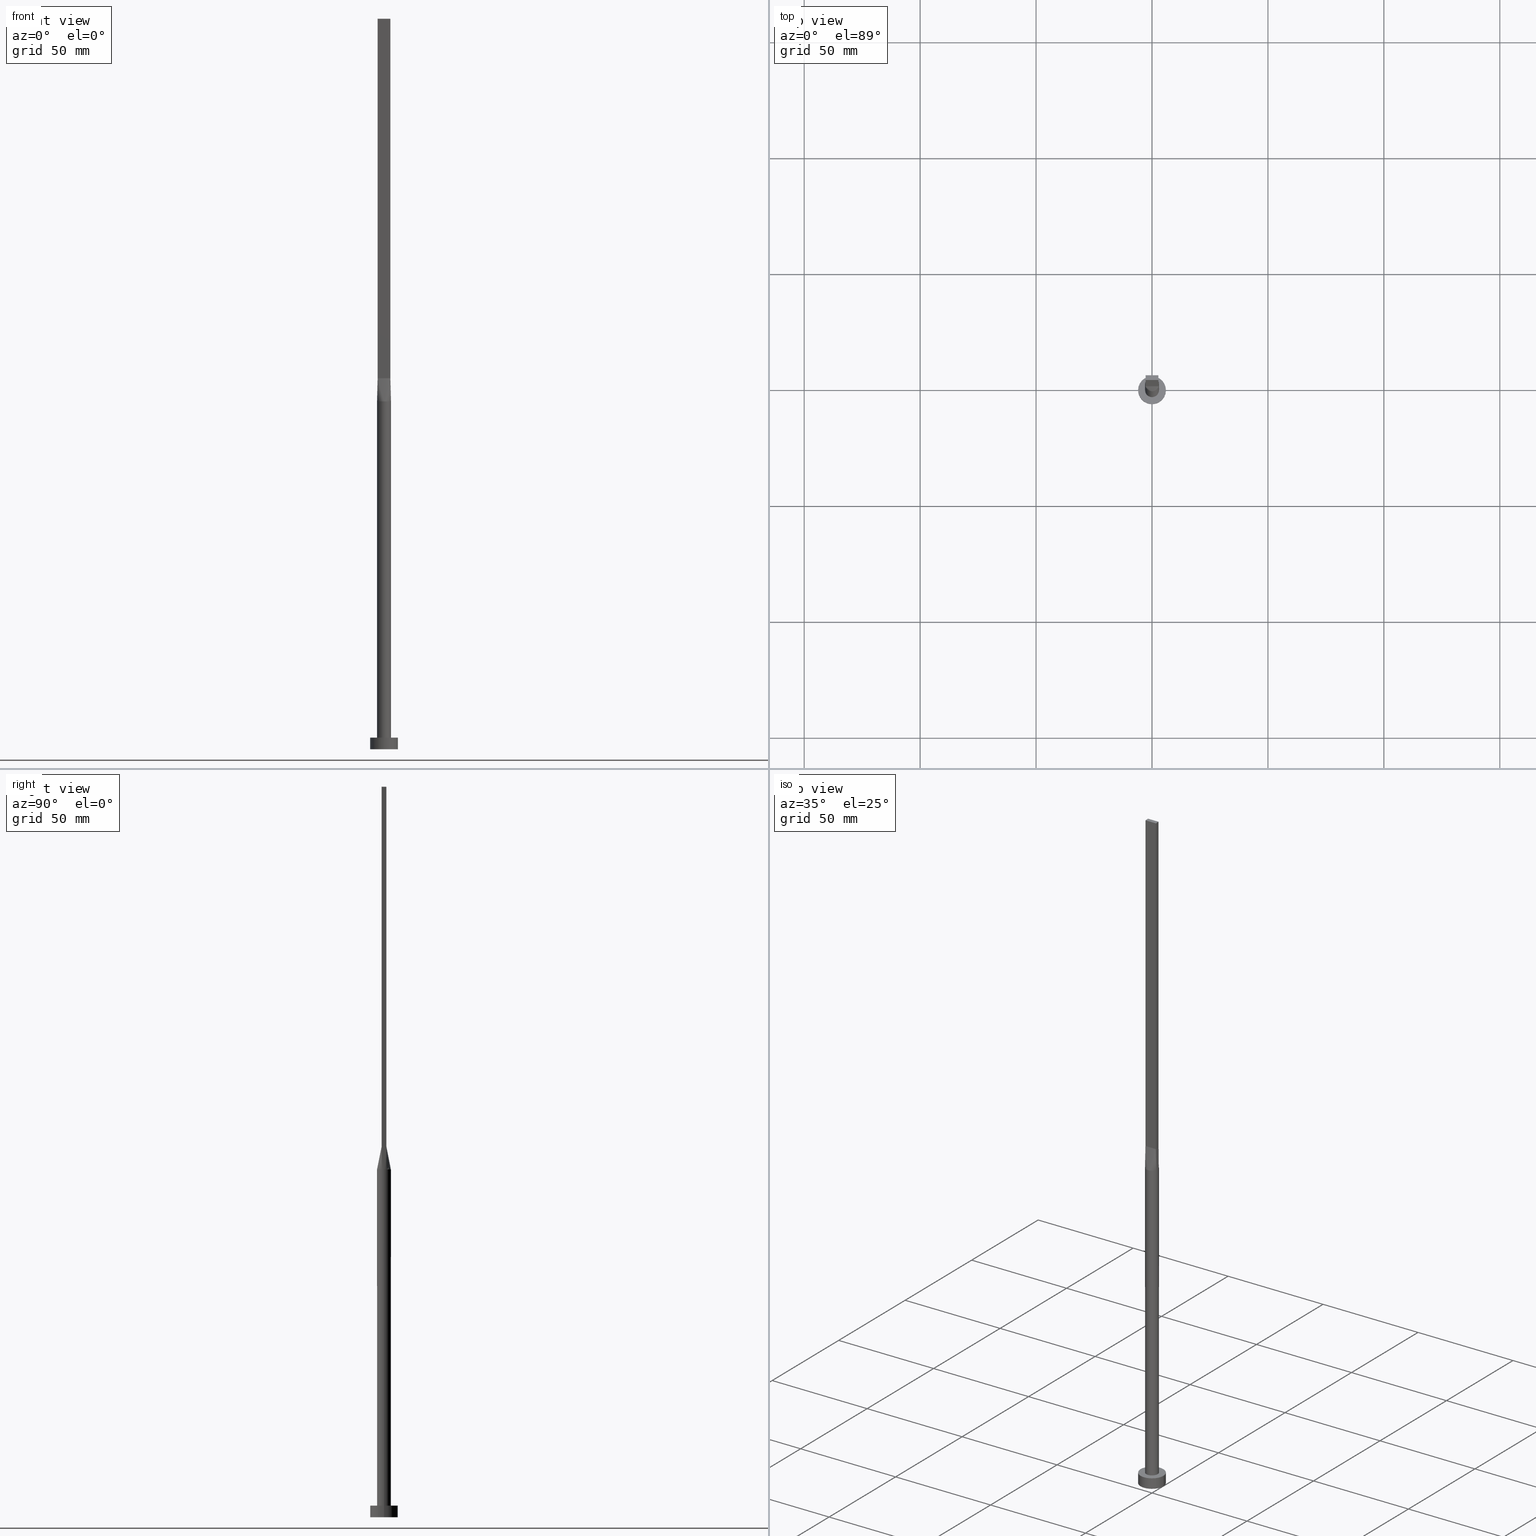
[diagram: canonical four-view strip — front | top / right | iso, engineering-drawing reading convention]
A machine part, canonical four-view strip (front | top / right | iso — engineering-drawing reading convention). The complete STEP part file that produces these views, byte-faithful:
ISO-10303-21;
HEADER;
FILE_DESCRIPTION (( 'STEP AP203' ),
    '1' );
FILE_NAME ('6c79.STEP',
    '2023-02-13T10:48:00',
    ( '' ),
    ( '' ),
    'SwSTEP 2.0',
    'SolidWorks 2019',
    '' );
FILE_SCHEMA (( 'CONFIG_CONTROL_DESIGN' ));
ENDSEC;

DATA;
#1 = DIRECTION ( 'NONE',  ( -1.000000000000000000, 0.000000000000000000, 0.000000000000000000 ) ) ;
#2 = APPLICATION_PROTOCOL_DEFINITION ( 'international standard', 'config_control_design', 1994, #474 ) ;
#3 = CARTESIAN_POINT ( 'NONE',  ( 2.739088299662391979, -1.246032108968142982, 150.0000000000000000 ) ) ;
#4 = B_SPLINE_SURFACE_WITH_KNOTS ( 'NONE', 3, 1, ( 
 ( #578, #421 ),
 ( #177, #137 ),
 ( #363, #6 ),
 ( #98, #419 ),
 ( #307, #182 ),
 ( #267, #449 ) ),
 .UNSPECIFIED., .F., .F., .F.,
 ( 4, 2, 4 ),
 ( 2, 2 ),
 ( 0.000000000000000000, 0.5000000000000000000, 1.000000000000000000 ),
 ( 0.000000000000000000, 1.000000000000000000 ),
 .UNSPECIFIED. ) ;
#5 = ORIENTED_EDGE ( 'NONE', *, *, #444, .F. ) ;
#6 = CARTESIAN_POINT ( 'NONE',  ( -2.749999999999999556, 0.3333333333333334814, 159.9999999999999716 ) ) ;
#7 = ORIENTED_EDGE ( 'NONE', *, *, #329, .T. ) ;
#8 = VECTOR ( 'NONE', #148, 1000.000000000000000 ) ;
#9 = DIRECTION ( 'NONE',  ( -0.000000000000000000, -0.000000000000000000, -1.000000000000000000 ) ) ;
#10 = EDGE_CURVE ( 'NONE', #427, #25, #527, .T. ) ;
#11 = AXIS2_PLACEMENT_3D ( 'NONE', #69, #274, #497 ) ;
#12 = AXIS2_PLACEMENT_3D ( 'NONE', #283, #240, #424 ) ;
#13 = DIRECTION ( 'NONE',  ( 0.000000000000000000, 0.000000000000000000, 1.000000000000000000 ) ) ;
#14 = DIRECTION ( 'NONE',  ( 0.000000000000000000, 0.000000000000000000, 1.000000000000000000 ) ) ;
#15 = LINE ( 'NONE', #581, #8 ) ;
#16 = EDGE_LOOP ( 'NONE', ( #97, #411, #5, #415 ) ) ;
#17 = DIRECTION ( 'NONE',  ( -0.000000000000000000, -0.000000000000000000, -1.000000000000000000 ) ) ;
#18 = LINE ( 'NONE', #75, #393 ) ;
#19 = PERSON_AND_ORGANIZATION ( #167, #465 ) ;
#20 = EDGE_CURVE ( 'NONE', #365, #25, #297, .T. ) ;
#21 = EDGE_LOOP ( 'NONE', ( #530, #279 ) ) ;
#22 = EDGE_CURVE ( 'NONE', #514, #558, #532, .T. ) ;
#23 = AXIS2_PLACEMENT_3D ( 'NONE', #68, #13, #426 ) ;
#24 = CYLINDRICAL_SURFACE ( 'NONE', #235, 3.000000000000000444 ) ;
#25 = VERTEX_POINT ( 'NONE', #481 ) ;
#26 = DIRECTION ( 'NONE',  ( 0.000000000000000000, 0.000000000000000000, 1.000000000000000000 ) ) ;
#27 = DATE_AND_TIME ( #76, #169 ) ;
#28 = ORIENTED_EDGE ( 'NONE', *, *, #20, .T. ) ;
#29 = B_SPLINE_SURFACE_WITH_KNOTS ( 'NONE', 3, 1, ( 
 ( #402, #486 ),
 ( #79, #569 ),
 ( #164, #263 ),
 ( #124, #170 ),
 ( #345, #303 ),
 ( #446, #43 ),
 ( #218, #576 ),
 ( #475, #392 ),
 ( #436, #34 ),
 ( #207, #396 ),
 ( #451, #276 ),
 ( #89, #135 ),
 ( #272, #457 ),
 ( #233, #410 ),
 ( #358, #311 ),
 ( #132, #414 ),
 ( #3, #494 ),
 ( #180, #314 ) ),
 .UNSPECIFIED., .F., .F., .F.,
 ( 4, 2, 2, 2, 2, 2, 2, 2, 4 ),
 ( 2, 2 ),
 ( 0.000000000000000000, 0.1250000000000000000, 0.2500000000000000000, 0.3750000000000000000, 0.5000000000000000000, 0.6250000000000000000, 0.7500000000000000000, 0.8750000000000000000, 1.000000000000000000 ),
 ( 0.000000000000000000, 1.000000000000000000 ),
 .UNSPECIFIED. ) ;
#30 = APPROVAL_STATUS ( 'not_yet_approved' ) ;
#31 = CARTESIAN_POINT ( 'NONE',  ( 0.000000000000000000, 0.000000000000000000, 5.000000000000000000 ) ) ;
#32 = CIRCLE ( 'NONE', #123, 6.000000000000000888 ) ;
#33 = CALENDAR_DATE ( 2023, 13, 2 ) ;
#34 = CARTESIAN_POINT ( 'NONE',  ( -0.2291666666666671015, -0.9999999999999993339, 160.0000000000000000 ) ) ;
#35 = ORIENTED_EDGE ( 'NONE', *, *, #444, .T. ) ;
#36 = CARTESIAN_POINT ( 'NONE',  ( -0.6998073349918608743, 2.936959335800557014, 150.0000000000000000 ) ) ;
#37 = PERSON_AND_ORGANIZATION ( #167, #465 ) ;
#38 = DIRECTION ( 'NONE',  ( -0.000000000000000000, -0.000000000000000000, -1.000000000000000000 ) ) ;
#39 = CARTESIAN_POINT ( 'NONE',  ( -1.627925520694712747, 2.539128397820341831, 150.0000000000000284 ) ) ;
#40 = VERTEX_POINT ( 'NONE', #121 ) ;
#41 = EDGE_CURVE ( 'NONE', #574, #558, #526, .T. ) ;
#42 = FACE_OUTER_BOUND ( 'NONE', #145, .T. ) ;
#43 = CARTESIAN_POINT ( 'NONE',  ( -1.145833333333333703, -0.9999999999999993339, 159.9999999999999716 ) ) ;
#44 = CIRCLE ( 'NONE', #367, 3.000000000000000444 ) ;
#45 = AXIS2_PLACEMENT_3D ( 'NONE', #575, #171, #352 ) ;
#46 =( GEOMETRIC_REPRESENTATION_CONTEXT ( 3 ) GLOBAL_UNCERTAINTY_ASSIGNED_CONTEXT ( ( #269 ) ) GLOBAL_UNIT_ASSIGNED_CONTEXT ( ( #133, #317, #469 ) ) REPRESENTATION_CONTEXT ( 'NONE', 'WORKASPACE' ) );
#47 = EDGE_CURVE ( 'NONE', #574, #365, #44, .T. ) ;
#48 = CARTESIAN_POINT ( 'NONE',  ( -2.314486317179579977, 1.928337902455808051, 150.0000000000000284 ) ) ;
#49 = CARTESIAN_POINT ( 'NONE',  ( 2.750000000000000000, -0.9999999999999997780, 315.0000000000000000 ) ) ;
#50 = CARTESIAN_POINT ( 'NONE',  ( -2.115507543051069916, 2.149870311632977593, 150.0000000000000568 ) ) ;
#51 = CARTESIAN_POINT ( 'NONE',  ( 0.000000000000000000, 0.000000000000000000, 150.0000000000000000 ) ) ;
#52 = MANIFOLD_SOLID_BREP ( 'P�idat vysunut�m5', #309 ) ;
#53 = CARTESIAN_POINT ( 'NONE',  ( -2.739088299662392423, 1.246032108968142316, 150.0000000000000284 ) ) ;
#54 = DIRECTION ( 'NONE',  ( 1.000000000000000000, 0.000000000000000000, 0.000000000000000000 ) ) ;
#55 = EDGE_LOOP ( 'NONE', ( #129, #113, #430, #321, #359, #271 ) ) ;
#56 = CARTESIAN_POINT ( 'NONE',  ( 2.625980160873452540, 1.476334031700886618, 150.0000000000000000 ) ) ;
#57 = CARTESIAN_POINT ( 'NONE',  ( 2.819430526142641558, -1.025247683279450817, 150.0000000000000000 ) ) ;
#58 = ADVANCED_FACE ( 'NONE', ( #339 ), #353, .T. ) ;
#59 = DIRECTION ( 'NONE',  ( -0.000000000000000000, -0.000000000000000000, -1.000000000000000000 ) ) ;
#60 = ADVANCED_FACE ( 'NONE', ( #572 ), #29, .T. ) ;
#61 = LINE ( 'NONE', #384, #74 ) ;
#62 = EDGE_LOOP ( 'NONE', ( #66, #439, #155, #193 ) ) ;
#63 = VECTOR ( 'NONE', #87, 1000.000000000000227 ) ;
#64 = AXIS2_PLACEMENT_3D ( 'NONE', #241, #289, #428 ) ;
#65 = FACE_BOUND ( 'NONE', #21, .T. ) ;
#66 = ORIENTED_EDGE ( 'NONE', *, *, #420, .T. ) ;
#67 = EDGE_CURVE ( 'NONE', #544, #119, #183, .T. ) ;
#68 = CARTESIAN_POINT ( 'NONE',  ( 0.000000000000000000, 0.000000000000000000, 5.000000000000000000 ) ) ;
#69 = CARTESIAN_POINT ( 'NONE',  ( 0.000000000000000000, 0.000000000000000000, 150.0000000000000000 ) ) ;
#70 = ORIENTED_EDGE ( 'NONE', *, *, #67, .F. ) ;
#71 = LINE ( 'NONE', #290, #456 ) ;
#72 = CARTESIAN_POINT ( 'NONE',  ( 2.739088299662392867, 1.246032108968142538, 150.0000000000000568 ) ) ;
#73 = ORIENTED_EDGE ( 'NONE', *, *, #41, .T. ) ;
#74 = VECTOR ( 'NONE', #105, 1000.000000000000000 ) ;
#75 = CARTESIAN_POINT ( 'NONE',  ( 2.749999999999999556, 1.000000000000000000, 315.0000000000000000 ) ) ;
#76 = CALENDAR_DATE ( 2023, 13, 2 ) ;
#77 = ORIENTED_EDGE ( 'NONE', *, *, #417, .T. ) ;
#78 = EDGE_CURVE ( 'NONE', #119, #312, #364, .T. ) ;
#79 = CARTESIAN_POINT ( 'NONE',  ( -2.739088299662391979, -1.246032108968140983, 150.0000000000000568 ) ) ;
#80 = CARTESIAN_POINT ( 'NONE',  ( 1.627925520694712080, 2.539128397820340943, 150.0000000000000000 ) ) ;
#81 = DIRECTION ( 'NONE',  ( 1.000000000000000000, 0.000000000000000000, 0.000000000000000000 ) ) ;
#82 = PLANE ( 'NONE',  #369 ) ;
#83 = PERSON_AND_ORGANIZATION ( #167, #465 ) ;
#84 = CARTESIAN_POINT ( 'NONE',  ( -2.749999999999999556, 1.000000000000000000, 315.0000000000000000 ) ) ;
#85 = EDGE_CURVE ( 'NONE', #324, #335, #413, .T. ) ;
#86 = DIRECTION ( 'NONE',  ( -1.000000000000000000, 7.885106708985489034E-17, 0.000000000000000000 ) ) ;
#87 = DIRECTION ( 'NONE',  ( 0.006937837988376402941, -0.002522850177591346235, 0.9999727504442450510 ) ) ;
#88 = CARTESIAN_POINT ( 'NONE',  ( -6.000000000000000888, 0.000000000000000000, 5.000000000000000000 ) ) ;
#89 = CARTESIAN_POINT ( 'NONE',  ( 1.338960936578149630, -2.706038443291638007, 150.0000000000000284 ) ) ;
#90 = CC_DESIGN_APPROVAL ( #340, ( #501 ) ) ;
#91 = CARTESIAN_POINT ( 'NONE',  ( -2.520833333333332593, 1.000000000000000000, 159.9999999999999716 ) ) ;
#92 = PRODUCT_DEFINITION ( 'NEZN�M�', '', #501, #220 ) ;
#93 = DIRECTION ( 'NONE',  ( 0.000000000000000000, 0.000000000000000000, 1.000000000000000000 ) ) ;
#94 = CARTESIAN_POINT ( 'NONE',  ( 1.338960936578149630, 2.706038443291637563, 150.0000000000000000 ) ) ;
#95 = ADVANCED_FACE ( 'NONE', ( #496 ), #408, .F. ) ;
#96 = CARTESIAN_POINT ( 'NONE',  ( 2.784690135232656072, -1.012614594630056208, 155.0000000000000000 ) ) ;
#97 = ORIENTED_EDGE ( 'NONE', *, *, #565, .T. ) ;
#98 = CARTESIAN_POINT ( 'NONE',  ( -3.000000000000000444, -0.3523499553598117839, 149.9999999999999716 ) ) ;
#99 = AXIS2_PLACEMENT_3D ( 'NONE', #173, #534, #509 ) ;
#100 = DIRECTION ( 'NONE',  ( 1.000000000000000000, 0.000000000000000000, 0.000000000000000000 ) ) ;
#101 = DIRECTION ( 'NONE',  ( -0.000000000000000000, -0.000000000000000000, -1.000000000000000000 ) ) ;
#102 = FACE_OUTER_BOUND ( 'NONE', #255, .T. ) ;
#103 = ORIENTED_EDGE ( 'NONE', *, *, #338, .T. ) ;
#104 = CIRCLE ( 'NONE', #45, 6.000000000000000888 ) ;
#105 = DIRECTION ( 'NONE',  ( -1.000000000000000000, -0.000000000000000000, -0.000000000000000000 ) ) ;
#106 = COORDINATED_UNIVERSAL_TIME_OFFSET ( 1, 0, .AHEAD. ) ;
#107 = CARTESIAN_POINT ( 'NONE',  ( -2.750000000000000000, -0.9999999999999993339, 315.0000000000000000 ) ) ;
#108 = CC_DESIGN_DATE_AND_TIME_ASSIGNMENT ( #434, #388, ( #217 ) ) ;
#109 = PERSON_AND_ORGANIZATION_ROLE ( 'design_owner' ) ;
#110 = ORIENTED_EDGE ( 'NONE', *, *, #322, .T. ) ;
#111 = DIRECTION ( 'NONE',  ( -0.000000000000000000, -0.000000000000000000, -1.000000000000000000 ) ) ;
#112 = ADVANCED_FACE ( 'NONE', ( #543 ), #278, .T. ) ;
#113 = ORIENTED_EDGE ( 'NONE', *, *, #571, .T. ) ;
#114 = VECTOR ( 'NONE', #101, 1000.000000000000000 ) ;
#115 = APPROVAL_PERSON_ORGANIZATION ( #37, #340, #120 ) ;
#116 = SECURITY_CLASSIFICATION_LEVEL ( 'unclassified' ) ;
#117 = EDGE_LOOP ( 'NONE', ( #7, #287 ) ) ;
#118 = PERSON_AND_ORGANIZATION_ROLE ( 'creator' ) ;
#119 = VERTEX_POINT ( 'NONE', #57 ) ;
#120 = APPROVAL_ROLE ( '' ) ;
#121 = CARTESIAN_POINT ( 'NONE',  ( 2.749999999999999556, 1.000000000000000000, 160.0000000000000000 ) ) ;
#122 = CARTESIAN_POINT ( 'NONE',  ( -2.749999999999999556, 1.000000000000000000, 315.0000000000000000 ) ) ;
#123 = AXIS2_PLACEMENT_3D ( 'NONE', #331, #557, #467 ) ;
#124 = CARTESIAN_POINT ( 'NONE',  ( -2.314486317179578645, -1.928337902455806496, 150.0000000000000000 ) ) ;
#125 = LINE ( 'NONE', #122, #573 ) ;
#126 = ORIENTED_EDGE ( 'NONE', *, *, #78, .F. ) ;
#127 = CARTESIAN_POINT ( 'NONE',  ( -2.749999999999999556, 1.000000000000000000, 315.0000000000000000 ) ) ;
#128 = APPLICATION_CONTEXT ( 'configuration controlled 3d designs of mechanical parts and assemblies' ) ;
#129 = ORIENTED_EDGE ( 'NONE', *, *, #85, .F. ) ;
#130 = EDGE_CURVE ( 'NONE', #25, #427, #448, .T. ) ;
#131 = CARTESIAN_POINT ( 'NONE',  ( 2.936168591633195657, 0.7040613060484338659, 150.0000000000000000 ) ) ;
#132 = CARTESIAN_POINT ( 'NONE',  ( 2.625980160873452984, -1.476334031700886618, 149.9999999999999716 ) ) ;
#133 =( LENGTH_UNIT ( ) NAMED_UNIT ( * ) SI_UNIT ( .MILLI., .METRE. ) );
#134 = PRODUCT_RELATED_PRODUCT_CATEGORY ( 'detail', '', ( #288 ) ) ;
#135 = CARTESIAN_POINT ( 'NONE',  ( 0.9166666666666661856, -0.9999999999999995559, 159.9999999999999716 ) ) ;
#136 = DIRECTION ( 'NONE',  ( -0.006937837988376359573, -0.002522850177591324551, -0.9999727504442450510 ) ) ;
#137 = CARTESIAN_POINT ( 'NONE',  ( -2.749999999999999556, 0.6666666666666667407, 159.9999999999999716 ) ) ;
#138 = ORIENTED_EDGE ( 'NONE', *, *, #416, .T. ) ;
#139 = APPLICATION_PROTOCOL_DEFINITION ( 'international standard', 'config_control_design', 1994, #128 ) ;
#140 = DIRECTION ( 'NONE',  ( 0.000000000000000000, 0.000000000000000000, 1.000000000000000000 ) ) ;
#141 = VECTOR ( 'NONE', #488, 1000.000000000000000 ) ;
#142 = VECTOR ( 'NONE', #325, 1000.000000000000000 ) ;
#143 = LINE ( 'NONE', #147, #142 ) ;
#144 = CARTESIAN_POINT ( 'NONE',  ( 0.000000000000000000, 0.000000000000000000, 5.000000000000000000 ) ) ;
#145 = EDGE_LOOP ( 'NONE', ( #292, #435, #328, #188 ) ) ;
#146 = LINE ( 'NONE', #225, #195 ) ;
#147 = CARTESIAN_POINT ( 'NONE',  ( -2.750000000000000000, -0.9999999999999993339, 160.0000000000000000 ) ) ;
#148 = DIRECTION ( 'NONE',  ( -0.000000000000000000, -0.000000000000000000, -1.000000000000000000 ) ) ;
#149 = VERTEX_POINT ( 'NONE', #227 ) ;
#150 = VECTOR ( 'NONE', #221, 1000.000000000000000 ) ;
#151 = CARTESIAN_POINT ( 'NONE',  ( -6.000000000000000888, 0.000000000000000000, 5.000000000000000000 ) ) ;
#152 = CARTESIAN_POINT ( 'NONE',  ( -2.819429393986302657, 1.025247261300842760, 150.0000000000000000 ) ) ;
#153 = ORIENTED_EDGE ( 'NONE', *, *, #85, .T. ) ;
#154 = CARTESIAN_POINT ( 'NONE',  ( 2.750000000000000000, -0.9999999999999997780, 160.0000000000000000 ) ) ;
#155 = ORIENTED_EDGE ( 'NONE', *, *, #322, .F. ) ;
#156 = ADVANCED_FACE ( 'NONE', ( #232 ), #223, .T. ) ;
#157 = CALENDAR_DATE ( 2023, 13, 2 ) ;
#158 = VERTEX_POINT ( 'NONE', #580 ) ;
#159 = AXIS2_PLACEMENT_3D ( 'NONE', #270, #537, #453 ) ;
#160 = LOCAL_TIME ( 11, 47, 59.00000000000000000, #296 ) ;
#161 = ORIENTED_EDGE ( 'NONE', *, *, #565, .F. ) ;
#162 = EDGE_LOOP ( 'NONE', ( #181, #517, #299, #138 ) ) ;
#163 = CARTESIAN_POINT ( 'NONE',  ( 3.000000000000000444, 0.3523499553598119505, 149.9999999999999716 ) ) ;
#164 = CARTESIAN_POINT ( 'NONE',  ( -2.625980160873452540, -1.476334031700885507, 150.0000000000000000 ) ) ;
#165 = ADVANCED_FACE ( 'NONE', ( #175 ), #4, .T. ) ;
#166 = CARTESIAN_POINT ( 'NONE',  ( 1.604166666666667185, 1.000000000000000000, 159.9999999999999716 ) ) ;
#167 = PERSON ( 'NEUR�EN�', 'NEUR�EN�', 'NEUR�EN�', ('NEUR�EN�'), ('NEUR�EN�'), ('NEUR�EN�') ) ;
#168 = VECTOR ( 'NONE', #422, 1000.000000000000000 ) ;
#169 = LOCAL_TIME ( 11, 47, 59.00000000000000000, #261 ) ;
#170 = CARTESIAN_POINT ( 'NONE',  ( -1.833333333333333481, -0.9999999999999993339, 159.9999999999999716 ) ) ;
#171 = DIRECTION ( 'NONE',  ( 0.000000000000000000, 0.000000000000000000, 1.000000000000000000 ) ) ;
#172 = DIRECTION ( 'NONE',  ( 0.000000000000000000, 0.000000000000000000, 1.000000000000000000 ) ) ;
#173 = CARTESIAN_POINT ( 'NONE',  ( 0.000000000000000000, 0.000000000000000000, 150.0000000000000000 ) ) ;
#174 = LINE ( 'NONE', #459, #519 ) ;
#175 = FACE_OUTER_BOUND ( 'NONE', #214, .T. ) ;
#176 = CARTESIAN_POINT ( 'NONE',  ( -1.627925520694712747, 2.539128397820341831, 150.0000000000000284 ) ) ;
#177 = CARTESIAN_POINT ( 'NONE',  ( -2.936168591633194769, 0.7040613060484341990, 150.0000000000000568 ) ) ;
#178 = EDGE_CURVE ( 'NONE', #158, #312, #539, .T. ) ;
#179 = CARTESIAN_POINT ( 'NONE',  ( 2.314486317179579977, 1.928337902455807384, 150.0000000000000568 ) ) ;
#180 = CARTESIAN_POINT ( 'NONE',  ( 2.819380270465311700, -1.025229189260112417, 150.0000000000000000 ) ) ;
#181 = ORIENTED_EDGE ( 'NONE', *, *, #286, .T. ) ;
#182 = CARTESIAN_POINT ( 'NONE',  ( -2.750000000000000000, -0.6666666666666659635, 159.9999999999999716 ) ) ;
#183 = CIRCLE ( 'NONE', #482, 3.000000000000000444 ) ;
#184 = ORIENTED_EDGE ( 'NONE', *, *, #186, .F. ) ;
#185 = EDGE_CURVE ( 'NONE', #365, #544, #277, .T. ) ;
#186 = EDGE_CURVE ( 'NONE', #40, #558, #61, .T. ) ;
#187 = LINE ( 'NONE', #151, #500 ) ;
#188 = ORIENTED_EDGE ( 'NONE', *, *, #381, .T. ) ;
#189 = PLANE ( 'NONE',  #228 ) ;
#190 = EDGE_LOOP ( 'NONE', ( #247, #253, #295, #284 ) ) ;
#191 = ADVANCED_FACE ( 'NONE', ( #513 ), #546, .F. ) ;
#192 = CARTESIAN_POINT ( 'NONE',  ( -2.819429393986302657, 1.025247261300842760, 150.0000000000000000 ) ) ;
#193 = ORIENTED_EDGE ( 'NONE', *, *, #178, .T. ) ;
#194 = ADVANCED_FACE ( 'NONE', ( #282 ), #24, .T. ) ;
#195 = VECTOR ( 'NONE', #136, 1000.000000000000227 ) ;
#196 = DIRECTION ( 'NONE',  ( 1.000000000000000000, 0.000000000000000000, -0.000000000000000000 ) ) ;
#197 = PERSON_AND_ORGANIZATION_ROLE ( 'classification_officer' ) ;
#198 = ORIENTED_EDGE ( 'NONE', *, *, #346, .T. ) ;
#199 = CARTESIAN_POINT ( 'NONE',  ( 0.000000000000000000, 0.000000000000000000, 0.000000000000000000 ) ) ;
#200 = CALENDAR_DATE ( 2023, 13, 2 ) ;
#201 = ORIENTED_EDGE ( 'NONE', *, *, #417, .F. ) ;
#202 = CARTESIAN_POINT ( 'NONE',  ( 3.000000000000000444, 3.673940397442060361E-16, 5.000000000000000000 ) ) ;
#203 = CARTESIAN_POINT ( 'NONE',  ( -3.000000000000000444, 0.000000000000000000, 150.0000000000000000 ) ) ;
#204 = PRODUCT_DEFINITION_SHAPE ( 'NONE', 'NONE',  #92 ) ;
#205 = LOCAL_TIME ( 11, 47, 59.00000000000000000, #442 ) ;
#206 = COORDINATED_UNIVERSAL_TIME_OFFSET ( 1, 0, .AHEAD. ) ;
#207 = CARTESIAN_POINT ( 'NONE',  ( 0.3502136323054372835, -3.000000000000000444, 150.0000000000000000 ) ) ;
#208 = CARTESIAN_POINT ( 'NONE',  ( -2.625980160873452096, 1.476334031700886396, 150.0000000000000000 ) ) ;
#209 = PERSON_AND_ORGANIZATION_ROLE ( 'design_supplier' ) ;
#210 = CARTESIAN_POINT ( 'NONE',  ( -2.784690135232655628, 1.012614594630056430, 155.0000000000000000 ) ) ;
#211 = CC_DESIGN_DATE_AND_TIME_ASSIGNMENT ( #27, #480, ( #92 ) ) ;
#212 = CARTESIAN_POINT ( 'NONE',  ( 0.3502136323054376721, 3.000000000000000444, 150.0000000000000000 ) ) ;
#213 = DIRECTION ( 'NONE',  ( 0.000000000000000000, 0.000000000000000000, 1.000000000000000000 ) ) ;
#214 = EDGE_LOOP ( 'NONE', ( #560, #273, #520, #161, #250 ) ) ;
#215 = CARTESIAN_POINT ( 'NONE',  ( 2.749999999999999556, 1.000000000000000000, 315.0000000000000000 ) ) ;
#216 = VECTOR ( 'NONE', #254, 1000.000000000000000 ) ;
#217 = SECURITY_CLASSIFICATION ( '', '', #116 ) ;
#218 = CARTESIAN_POINT ( 'NONE',  ( -1.338960936578150518, -2.706038443291638007, 150.0000000000000000 ) ) ;
#219 = CARTESIAN_POINT ( 'NONE',  ( -2.819380270465311700, 1.025229189260112861, 150.0000000000000000 ) ) ;
#220 = DESIGN_CONTEXT ( 'detailed design', #128, 'design' ) ;
#221 = DIRECTION ( 'NONE',  ( -0.000000000000000000, -0.000000000000000000, -1.000000000000000000 ) ) ;
#222 = PLANE ( 'NONE',  #310 ) ;
#223 = CYLINDRICAL_SURFACE ( 'NONE', #301, 6.000000000000000888 ) ;
#224 = CARTESIAN_POINT ( 'NONE',  ( -2.625980160873452096, 1.476334031700886396, 150.0000000000000000 ) ) ;
#225 = CARTESIAN_POINT ( 'NONE',  ( -2.784690135232656072, -1.012614594630055764, 155.0000000000000000 ) ) ;
#226 = ADVANCED_FACE ( 'NONE', ( #102 ), #249, .F. ) ;
#227 = CARTESIAN_POINT ( 'NONE',  ( 6.000000000000000888, 7.347880794884120722E-16, 0.000000000000000000 ) ) ;
#228 = AXIS2_PLACEMENT_3D ( 'NONE', #144, #26, #196 ) ;
#229 = APPROVAL_PERSON_ORGANIZATION ( #356, #563, #510 ) ;
#230 = ORIENTED_EDGE ( 'NONE', *, *, #542, .F. ) ;
#231 = CARTESIAN_POINT ( 'NONE',  ( -1.338960936578149408, 2.706038443291637119, 150.0000000000000284 ) ) ;
#232 = FACE_OUTER_BOUND ( 'NONE', #511, .T. ) ;
#233 = CARTESIAN_POINT ( 'NONE',  ( 2.115507543051068140, -2.149870311632976705, 149.9999999999999432 ) ) ;
#234 = CARTESIAN_POINT ( 'NONE',  ( 2.750000000000000000, -0.9999999999999997780, 315.0000000000000000 ) ) ;
#235 = AXIS2_PLACEMENT_3D ( 'NONE', #506, #372, #549 ) ;
#236 = VERTEX_POINT ( 'NONE', #280 ) ;
#237 = LOCAL_TIME ( 11, 47, 59.00000000000000000, #206 ) ;
#238 = CARTESIAN_POINT ( 'NONE',  ( 2.784690135232655628, 1.012614594630056430, 155.0000000000000000 ) ) ;
#239 = FACE_OUTER_BOUND ( 'NONE', #380, .T. ) ;
#240 = DIRECTION ( 'NONE',  ( 0.000000000000000000, 0.000000000000000000, 1.000000000000000000 ) ) ;
#241 = CARTESIAN_POINT ( 'NONE',  ( 2.750000000000000000, -0.9999999999999997780, 315.0000000000000000 ) ) ;
#242 = CARTESIAN_POINT ( 'NONE',  ( -2.314486317179579977, 1.928337902455808051, 150.0000000000000284 ) ) ;
#243 = ORIENTED_EDGE ( 'NONE', *, *, #508, .F. ) ;
#244 = ADVANCED_FACE ( 'NONE', ( #65, #431 ), #189, .T. ) ;
#245 = DIRECTION ( 'NONE',  ( 1.000000000000000000, 0.000000000000000000, -0.000000000000000000 ) ) ;
#246 = CARTESIAN_POINT ( 'NONE',  ( -2.115507543051069916, 2.149870311632977593, 150.0000000000000568 ) ) ;
#247 = ORIENTED_EDGE ( 'NONE', *, *, #67, .T. ) ;
#248 = AXIS2_PLACEMENT_3D ( 'NONE', #476, #341, #466 ) ;
#249 = PLANE ( 'NONE',  #293 ) ;
#250 = ORIENTED_EDGE ( 'NONE', *, *, #41, .F. ) ;
#251 = CARTESIAN_POINT ( 'NONE',  ( -2.750000000000000000, -0.9999999999999993339, 315.0000000000000000 ) ) ;
#252 = SHAPE_DEFINITION_REPRESENTATION ( #204, #418 ) ;
#253 = ORIENTED_EDGE ( 'NONE', *, *, #78, .T. ) ;
#254 = DIRECTION ( 'NONE',  ( -0.000000000000000000, -0.000000000000000000, -1.000000000000000000 ) ) ;
#255 = EDGE_LOOP ( 'NONE', ( #399, #201 ) ) ;
#256 = CARTESIAN_POINT ( 'NONE',  ( 0.4583333333333342030, 1.000000000000000000, 159.9999999999999716 ) ) ;
#257 = ADVANCED_FACE ( 'NONE', ( #239 ), #554, .T. ) ;
#258 = APPROVAL_STATUS ( 'not_yet_approved' ) ;
#259 = CARTESIAN_POINT ( 'NONE',  ( 0.000000000000000000, 0.000000000000000000, 5.000000000000000000 ) ) ;
#260 = DIRECTION ( 'NONE',  ( 0.000000000000000000, -1.000000000000000000, 0.000000000000000000 ) ) ;
#261 = COORDINATED_UNIVERSAL_TIME_OFFSET ( 1, 0, .AHEAD. ) ;
#262 = CARTESIAN_POINT ( 'NONE',  ( -0.9166666666666651864, 1.000000000000000000, 159.9999999999999716 ) ) ;
#263 = CARTESIAN_POINT ( 'NONE',  ( -2.291666666666666519, -0.9999999999999993339, 159.9999999999999716 ) ) ;
#264 = CARTESIAN_POINT ( 'NONE',  ( -0.4583333333333324267, 1.000000000000000000, 159.9999999999999716 ) ) ;
#265 = VECTOR ( 'NONE', #373, 1000.000000000000000 ) ;
#266 = VECTOR ( 'NONE', #425, 1000.000000000000000 ) ;
#267 = CARTESIAN_POINT ( 'NONE',  ( -2.819380270465311700, -1.025229189260112195, 150.0000000000000000 ) ) ;
#268 = CARTESIAN_POINT ( 'NONE',  ( 2.749999999999999556, 0.6666666666666676289, 159.9999999999999716 ) ) ;
#269 = UNCERTAINTY_MEASURE_WITH_UNIT (LENGTH_MEASURE( 1.000000000000000082E-05 ), #133, 'distance_accuracy_value', 'NONE');
#270 = CARTESIAN_POINT ( 'NONE',  ( 0.000000000000000000, 0.000000000000000000, 315.0000000000000000 ) ) ;
#271 = ORIENTED_EDGE ( 'NONE', *, *, #545, .F. ) ;
#272 = CARTESIAN_POINT ( 'NONE',  ( 1.627925520694712080, -2.539128397820341831, 149.9999999999999716 ) ) ;
#273 = ORIENTED_EDGE ( 'NONE', *, *, #185, .T. ) ;
#274 = DIRECTION ( 'NONE',  ( 0.000000000000000000, 0.000000000000000000, 1.000000000000000000 ) ) ;
#275 = AXIS2_PLACEMENT_3D ( 'NONE', #31, #172, #343 ) ;
#276 = CARTESIAN_POINT ( 'NONE',  ( 0.4583333333333329263, -0.9999999999999995559, 159.9999999999999716 ) ) ;
#277 = CIRCLE ( 'NONE', #99, 3.000000000000000444 ) ;
#278 = PLANE ( 'NONE',  #159 ) ;
#279 = ORIENTED_EDGE ( 'NONE', *, *, #10, .F. ) ;
#280 = CARTESIAN_POINT ( 'NONE',  ( 2.749999999999999556, 1.000000000000000000, 315.0000000000000000 ) ) ;
#281 = EDGE_LOOP ( 'NONE', ( #337, #73, #184, #432 ) ) ;
#282 = FACE_OUTER_BOUND ( 'NONE', #55, .T. ) ;
#283 = CARTESIAN_POINT ( 'NONE',  ( 0.000000000000000000, 0.000000000000000000, 0.000000000000000000 ) ) ;
#284 = ORIENTED_EDGE ( 'NONE', *, *, #386, .T. ) ;
#285 = DIRECTION ( 'NONE',  ( -0.000000000000000000, -0.000000000000000000, -1.000000000000000000 ) ) ;
#286 = EDGE_CURVE ( 'NONE', #522, #312, #143, .T. ) ;
#287 = ORIENTED_EDGE ( 'NONE', *, *, #508, .T. ) ;
#288 = PRODUCT ( '6c79', '6c79', '', ( #550 ) ) ;
#289 = DIRECTION ( 'NONE',  ( -1.000000000000000000, -2.168404344971009115E-16, 0.000000000000000000 ) ) ;
#290 = CARTESIAN_POINT ( 'NONE',  ( -2.750000000000000000, -0.9999999999999993339, 315.0000000000000000 ) ) ;
#291 = PERSON_AND_ORGANIZATION ( #167, #465 ) ;
#292 = ORIENTED_EDGE ( 'NONE', *, *, #186, .T. ) ;
#293 = AXIS2_PLACEMENT_3D ( 'NONE', #199, #14, #245 ) ;
#294 = EDGE_CURVE ( 'NONE', #319, #149, #320, .T. ) ;
#295 = ORIENTED_EDGE ( 'NONE', *, *, #286, .F. ) ;
#296 = COORDINATED_UNIVERSAL_TIME_OFFSET ( 1, 0, .AHEAD. ) ;
#297 = LINE ( 'NONE', #203, #141 ) ;
#298 = CARTESIAN_POINT ( 'NONE',  ( -1.604166666666665186, 1.000000000000000000, 159.9999999999999716 ) ) ;
#299 = ORIENTED_EDGE ( 'NONE', *, *, #366, .F. ) ;
#300 = CARTESIAN_POINT ( 'NONE',  ( 0.9166666666666677399, 1.000000000000000000, 159.9999999999999716 ) ) ;
#301 = AXIS2_PLACEMENT_3D ( 'NONE', #498, #59, #1 ) ;
#302 = EDGE_CURVE ( 'NONE', #374, #149, #32, .T. ) ;
#303 = CARTESIAN_POINT ( 'NONE',  ( -1.604166666666666963, -0.9999999999999993339, 159.9999999999999716 ) ) ;
#304 = DIRECTION ( 'NONE',  ( 7.885106708985489034E-17, 1.000000000000000000, -0.000000000000000000 ) ) ;
#305 = ORIENTED_EDGE ( 'NONE', *, *, #302, .T. ) ;
#306 = CARTESIAN_POINT ( 'NONE',  ( -2.739088299662392423, 1.246032108968142316, 150.0000000000000284 ) ) ;
#307 = CARTESIAN_POINT ( 'NONE',  ( -2.936168591633195657, -0.7040613060484334218, 150.0000000000000000 ) ) ;
#308 = CARTESIAN_POINT ( 'NONE',  ( 1.145833333333334147, 1.000000000000000000, 159.9999999999999716 ) ) ;
#309 = CLOSED_SHELL ( 'NONE', ( #194, #156, #58, #244, #226, #257, #60, #462, #165, #438, #471, #95, #470, #191, #112 ) ) ;
#310 = AXIS2_PLACEMENT_3D ( 'NONE', #483, #304, #86 ) ;
#311 = CARTESIAN_POINT ( 'NONE',  ( 1.833333333333333037, -0.9999999999999995559, 159.9999999999999716 ) ) ;
#312 = VERTEX_POINT ( 'NONE', #154 ) ;
#313 = CARTESIAN_POINT ( 'NONE',  ( -0.3502136323054376721, 2.999999999999999112, 150.0000000000000284 ) ) ;
#314 = CARTESIAN_POINT ( 'NONE',  ( 2.750000000000000000, -0.9999999999999997780, 160.0000000000000000 ) ) ;
#315 = CARTESIAN_POINT ( 'NONE',  ( 0.6998073349918605413, 2.936959335800557014, 150.0000000000000000 ) ) ;
#316 = DIRECTION ( 'NONE',  ( -0.006937837988376359573, 0.002522850177591324551, 0.9999727504442450510 ) ) ;
#317 =( NAMED_UNIT ( * ) PLANE_ANGLE_UNIT ( ) SI_UNIT ( $, .RADIAN. ) );
#318 = DIRECTION ( 'NONE',  ( 1.000000000000000000, -2.168404344971009854E-16, 0.000000000000000000 ) ) ;
#319 = VERTEX_POINT ( 'NONE', #333 ) ;
#320 = LINE ( 'NONE', #503, #114 ) ;
#321 = ORIENTED_EDGE ( 'NONE', *, *, #20, .F. ) ;
#322 = EDGE_CURVE ( 'NONE', #158, #236, #460, .T. ) ;
#323 = CARTESIAN_POINT ( 'NONE',  ( 0.000000000000000000, 0.000000000000000000, 150.0000000000000000 ) ) ;
#324 = VERTEX_POINT ( 'NONE', #464 ) ;
#325 = DIRECTION ( 'NONE',  ( 1.000000000000000000, -7.885106708985487801E-17, 0.000000000000000000 ) ) ;
#326 = APPROVAL_STATUS ( 'not_yet_approved' ) ;
#327 = VECTOR ( 'NONE', #316, 1000.000000000000227 ) ;
#328 = ORIENTED_EDGE ( 'NONE', *, *, #338, .F. ) ;
#329 = EDGE_CURVE ( 'NONE', #504, #319, #357, .T. ) ;
#330 = CARTESIAN_POINT ( 'NONE',  ( 2.625980160873452540, 1.476334031700886618, 150.0000000000000000 ) ) ;
#331 = CARTESIAN_POINT ( 'NONE',  ( 0.000000000000000000, 0.000000000000000000, 0.000000000000000000 ) ) ;
#332 = ORIENTED_EDGE ( 'NONE', *, *, #571, .F. ) ;
#333 = CARTESIAN_POINT ( 'NONE',  ( 6.000000000000000888, 7.347880794884120722E-16, 5.000000000000000000 ) ) ;
#334 = DATE_AND_TIME ( #518, #205 ) ;
#335 = VERTEX_POINT ( 'NONE', #515 ) ;
#336 = PERSON_AND_ORGANIZATION ( #167, #465 ) ;
#337 = ORIENTED_EDGE ( 'NONE', *, *, #545, .T. ) ;
#338 = EDGE_CURVE ( 'NONE', #236, #514, #18, .T. ) ;
#339 = FACE_OUTER_BOUND ( 'NONE', #499, .T. ) ;
#340 = APPROVAL ( #258, 'NEUR�EN�' ) ;
#341 = DIRECTION ( 'NONE',  ( 0.000000000000000000, 0.000000000000000000, 1.000000000000000000 ) ) ;
#342 = DATE_AND_TIME ( #200, #237 ) ;
#343 = DIRECTION ( 'NONE',  ( 1.000000000000000000, 0.000000000000000000, 0.000000000000000000 ) ) ;
#344 = CARTESIAN_POINT ( 'NONE',  ( 2.749999999999999556, 0.3333333333333348136, 159.9999999999999716 ) ) ;
#345 = CARTESIAN_POINT ( 'NONE',  ( -2.115507543051069472, -2.149870311632975373, 149.9999999999999432 ) ) ;
#346 = EDGE_CURVE ( 'NONE', #504, #374, #187, .T. ) ;
#347 = CARTESIAN_POINT ( 'NONE',  ( 0.6998073349918605413, 2.936959335800557014, 150.0000000000000000 ) ) ;
#348 = CIRCLE ( 'NONE', #248, 6.000000000000000888 ) ;
#349 = CC_DESIGN_APPROVAL ( #563, ( #92 ) ) ;
#350 = CC_DESIGN_PERSON_AND_ORGANIZATION_ASSIGNMENT ( #336, #484, ( #501 ) ) ;
#351 = VERTEX_POINT ( 'NONE', #107 ) ;
#352 = DIRECTION ( 'NONE',  ( 1.000000000000000000, 0.000000000000000000, 0.000000000000000000 ) ) ;
#353 = CYLINDRICAL_SURFACE ( 'NONE', #552, 6.000000000000000888 ) ;
#354 = CARTESIAN_POINT ( 'NONE',  ( -2.291666666666665630, 1.000000000000000000, 159.9999999999999716 ) ) ;
#355 = CARTESIAN_POINT ( 'NONE',  ( -2.749999999999999556, 1.000000000000000000, 315.0000000000000000 ) ) ;
#356 = PERSON_AND_ORGANIZATION ( #167, #465 ) ;
#357 = CIRCLE ( 'NONE', #23, 6.000000000000000888 ) ;
#358 = CARTESIAN_POINT ( 'NONE',  ( 2.314486317179579533, -1.928337902455807606, 149.9999999999999716 ) ) ;
#359 = ORIENTED_EDGE ( 'NONE', *, *, #47, .F. ) ;
#360 = CARTESIAN_POINT ( 'NONE',  ( 2.115507543051069916, 2.149870311632976705, 150.0000000000000284 ) ) ;
#361 = CC_DESIGN_PERSON_AND_ORGANIZATION_ASSIGNMENT ( #291, #197, ( #217 ) ) ;
#362 = LINE ( 'NONE', #238, #562 ) ;
#363 = CARTESIAN_POINT ( 'NONE',  ( -3.000000000000000444, 0.3523499553598127276, 150.0000000000000000 ) ) ;
#364 = LINE ( 'NONE', #96, #327 ) ;
#365 = VERTEX_POINT ( 'NONE', #468 ) ;
#366 = EDGE_CURVE ( 'NONE', #351, #158, #71, .T. ) ;
#367 = AXIS2_PLACEMENT_3D ( 'NONE', #566, #213, #81 ) ;
#368 = CARTESIAN_POINT ( 'NONE',  ( 0.000000000000000000, 0.000000000000000000, 5.000000000000000000 ) ) ;
#369 = AXIS2_PLACEMENT_3D ( 'NONE', #215, #260, #404 ) ;
#370 = CARTESIAN_POINT ( 'NONE',  ( -6.000000000000000888, 0.000000000000000000, 0.000000000000000000 ) ) ;
#371 = ORIENTED_EDGE ( 'NONE', *, *, #294, .T. ) ;
#372 = DIRECTION ( 'NONE',  ( -0.000000000000000000, -0.000000000000000000, -1.000000000000000000 ) ) ;
#373 = DIRECTION ( 'NONE',  ( -2.168404344971009854E-16, -1.000000000000000000, 0.000000000000000000 ) ) ;
#374 = VERTEX_POINT ( 'NONE', #370 ) ;
#375 = CARTESIAN_POINT ( 'NONE',  ( 2.739088299662392867, 1.246032108968142538, 150.0000000000000568 ) ) ;
#376 = B_SPLINE_SURFACE_WITH_KNOTS ( 'NONE', 3, 1, ( 
 ( #489, #447 ),
 ( #492, #533 ),
 ( #487, #577 ),
 ( #163, #344 ),
 ( #131, #268 ),
 ( #445, #450 ) ),
 .UNSPECIFIED., .F., .F., .F.,
 ( 4, 2, 4 ),
 ( 2, 2 ),
 ( 0.000000000000000000, 0.5000000000000000000, 1.000000000000000000 ),
 ( 0.000000000000000000, 1.000000000000000000 ),
 .UNSPECIFIED. ) ;
#377 = DIRECTION ( 'NONE',  ( -1.000000000000000000, 0.000000000000000000, 0.000000000000000000 ) ) ;
#378 = CARTESIAN_POINT ( 'NONE',  ( -2.750000000000000000, -0.9999999999999993339, 160.0000000000000000 ) ) ;
#379 = AXIS2_PLACEMENT_3D ( 'NONE', #323, #285, #387 ) ;
#380 = EDGE_LOOP ( 'NONE', ( #332, #230, #70, #400, #28, #389 ) ) ;
#381 = EDGE_CURVE ( 'NONE', #236, #40, #174, .T. ) ;
#382 = CARTESIAN_POINT ( 'NONE',  ( 2.819380270465311700, 1.025229189260113083, 150.0000000000000000 ) ) ;
#383 = EDGE_CURVE ( 'NONE', #335, #40, #362, .T. ) ;
#384 = CARTESIAN_POINT ( 'NONE',  ( -2.749999999999999556, 1.000000000000000000, 160.0000000000000000 ) ) ;
#385 = APPROVAL_DATE_TIME ( #342, #485 ) ;
#386 = EDGE_CURVE ( 'NONE', #522, #544, #146, .T. ) ;
#387 = DIRECTION ( 'NONE',  ( -1.000000000000000000, 0.000000000000000000, 0.000000000000000000 ) ) ;
#388 = DATE_TIME_ROLE ( 'classification_date' ) ;
#389 = ORIENTED_EDGE ( 'NONE', *, *, #130, .T. ) ;
#390 = FACE_OUTER_BOUND ( 'NONE', #281, .T. ) ;
#391 = APPROVAL_DATE_TIME ( #334, #340 ) ;
#392 = CARTESIAN_POINT ( 'NONE',  ( -0.4583333333333337589, -0.9999999999999993339, 159.9999999999999716 ) ) ;
#393 = VECTOR ( 'NONE', #377, 1000.000000000000000 ) ;
#394 = LINE ( 'NONE', #251, #528 ) ;
#395 = APPROVAL_ROLE ( '' ) ;
#396 = CARTESIAN_POINT ( 'NONE',  ( 0.2291666666666662688, -0.9999999999999995559, 159.9999999999999716 ) ) ;
#397 = CARTESIAN_POINT ( 'NONE',  ( -1.338960936578149408, 2.706038443291637119, 150.0000000000000284 ) ) ;
#398 = APPROVAL_DATE_TIME ( #524, #563 ) ;
#399 = ORIENTED_EDGE ( 'NONE', *, *, #302, .F. ) ;
#400 = ORIENTED_EDGE ( 'NONE', *, *, #185, .F. ) ;
#401 = CARTESIAN_POINT ( 'NONE',  ( -2.749999999999999556, 1.000000000000000000, 160.0000000000000000 ) ) ;
#402 = CARTESIAN_POINT ( 'NONE',  ( -2.819380270465311700, -1.025229189260111973, 150.0000000000000000 ) ) ;
#403 = ORIENTED_EDGE ( 'NONE', *, *, #329, .F. ) ;
#404 = DIRECTION ( 'NONE',  ( 0.000000000000000000, -0.000000000000000000, -1.000000000000000000 ) ) ;
#405 = CIRCLE ( 'NONE', #11, 3.000000000000000444 ) ;
#406 = EDGE_LOOP ( 'NONE', ( #556, #153, #454, #547, #126 ) ) ;
#407 = CARTESIAN_POINT ( 'NONE',  ( 1.338960936578149630, 2.706038443291637563, 150.0000000000000000 ) ) ;
#408 = PLANE ( 'NONE',  #463 ) ;
#409 = CARTESIAN_POINT ( 'NONE',  ( 2.115507543051069916, 2.149870311632976705, 150.0000000000000284 ) ) ;
#410 = CARTESIAN_POINT ( 'NONE',  ( 1.604166666666666297, -0.9999999999999995559, 159.9999999999999716 ) ) ;
#411 = ORIENTED_EDGE ( 'NONE', *, *, #416, .F. ) ;
#412 = CARTESIAN_POINT ( 'NONE',  ( -2.749999999999999556, 1.000000000000000000, 160.0000000000000000 ) ) ;
#413 = CIRCLE ( 'NONE', #491, 3.000000000000000444 ) ;
#414 = CARTESIAN_POINT ( 'NONE',  ( 2.291666666666666519, -0.9999999999999995559, 159.9999999999999716 ) ) ;
#415 = ORIENTED_EDGE ( 'NONE', *, *, #22, .T. ) ;
#416 = EDGE_CURVE ( 'NONE', #351, #522, #394, .T. ) ;
#417 = EDGE_CURVE ( 'NONE', #149, #374, #348, .T. ) ;
#418 = ADVANCED_BREP_SHAPE_REPRESENTATION ( '6c79', ( #52, #12 ), #46 ) ;
#419 = CARTESIAN_POINT ( 'NONE',  ( -2.750000000000000000, -0.3333333333333328152, 159.9999999999999716 ) ) ;
#420 = EDGE_CURVE ( 'NONE', #312, #40, #521, .T. ) ;
#421 = CARTESIAN_POINT ( 'NONE',  ( -2.749999999999999556, 1.000000000000000000, 160.0000000000000000 ) ) ;
#422 = DIRECTION ( 'NONE',  ( -2.168404344971008868E-16, 1.000000000000000000, 0.000000000000000000 ) ) ;
#423 = ORIENTED_EDGE ( 'NONE', *, *, #346, .F. ) ;
#424 = DIRECTION ( 'NONE',  ( 1.000000000000000000, 0.000000000000000000, 0.000000000000000000 ) ) ;
#425 = DIRECTION ( 'NONE',  ( -2.168404344971008868E-16, 1.000000000000000000, -0.000000000000000000 ) ) ;
#426 = DIRECTION ( 'NONE',  ( 1.000000000000000000, 0.000000000000000000, 0.000000000000000000 ) ) ;
#427 = VERTEX_POINT ( 'NONE', #202 ) ;
#428 = DIRECTION ( 'NONE',  ( 2.168404344971009115E-16, -1.000000000000000000, 0.000000000000000000 ) ) ;
#429 = CARTESIAN_POINT ( 'NONE',  ( -2.749999999999999556, 1.000000000000000000, 160.0000000000000000 ) ) ;
#430 = ORIENTED_EDGE ( 'NONE', *, *, #10, .T. ) ;
#431 = FACE_OUTER_BOUND ( 'NONE', #117, .T. ) ;
#432 = ORIENTED_EDGE ( 'NONE', *, *, #383, .F. ) ;
#433 = CARTESIAN_POINT ( 'NONE',  ( 2.749999999999999556, 1.000000000000000000, 160.0000000000000000 ) ) ;
#434 = DATE_AND_TIME ( #33, #160 ) ;
#435 = ORIENTED_EDGE ( 'NONE', *, *, #22, .F. ) ;
#436 = CARTESIAN_POINT ( 'NONE',  ( -0.3502136323054380052, -3.000000000000000888, 150.0000000000000000 ) ) ;
#437 = CARTESIAN_POINT ( 'NONE',  ( -0.2291666666666661856, 1.000000000000000000, 159.9999999999999716 ) ) ;
#438 = ADVANCED_FACE ( 'NONE', ( #390 ), #477, .T. ) ;
#439 = ORIENTED_EDGE ( 'NONE', *, *, #381, .F. ) ;
#440 = B_SPLINE_CURVE_WITH_KNOTS ( 'NONE', 3,
 ( #495, #72, #56, #179, #360, #455, #94, #315, #452, #313, #555, #231, #176, #246, #242, #224, #53, #192 ),
 .UNSPECIFIED., .F., .F.,
 ( 4, 2, 2, 2, 2, 2, 2, 2, 4 ),
 ( 0.000000000000000000, 0.1249999999999998890, 0.2499999999999997780, 0.3749999999999997780, 0.4999999999999997780, 0.6249999999999997780, 0.7499999999999997780, 0.8749999999999998890, 1.000000000000000000 ),
 .UNSPECIFIED. ) ;
#441 = CARTESIAN_POINT ( 'NONE',  ( -0.3502136323054376721, 2.999999999999999112, 150.0000000000000284 ) ) ;
#442 = COORDINATED_UNIVERSAL_TIME_OFFSET ( 1, 0, .AHEAD. ) ;
#443 = EDGE_LOOP ( 'NONE', ( #103, #35, #535, #110 ) ) ;
#444 = EDGE_CURVE ( 'NONE', #514, #351, #125, .T. ) ;
#445 = CARTESIAN_POINT ( 'NONE',  ( 2.819380270465311700, 1.025229189260112639, 150.0000000000000000 ) ) ;
#446 = CARTESIAN_POINT ( 'NONE',  ( -1.627925520694712525, -2.539128397820340055, 150.0000000000000000 ) ) ;
#447 = CARTESIAN_POINT ( 'NONE',  ( 2.750000000000000000, -1.000000000000000000, 160.0000000000000000 ) ) ;
#448 = CIRCLE ( 'NONE', #473, 3.000000000000000444 ) ;
#449 = CARTESIAN_POINT ( 'NONE',  ( -2.750000000000000000, -0.9999999999999991118, 160.0000000000000000 ) ) ;
#450 = CARTESIAN_POINT ( 'NONE',  ( 2.749999999999999556, 1.000000000000000000, 160.0000000000000000 ) ) ;
#451 = CARTESIAN_POINT ( 'NONE',  ( 0.6998073349918603192, -2.936959335800557902, 150.0000000000000000 ) ) ;
#452 = CARTESIAN_POINT ( 'NONE',  ( 0.3502136323054376721, 3.000000000000000444, 150.0000000000000000 ) ) ;
#453 = DIRECTION ( 'NONE',  ( 1.000000000000000000, 0.000000000000000000, -0.000000000000000000 ) ) ;
#454 = ORIENTED_EDGE ( 'NONE', *, *, #383, .T. ) ;
#455 = CARTESIAN_POINT ( 'NONE',  ( 1.627925520694712080, 2.539128397820340943, 150.0000000000000000 ) ) ;
#456 = VECTOR ( 'NONE', #472, 1000.000000000000000 ) ;
#457 = CARTESIAN_POINT ( 'NONE',  ( 1.145833333333332815, -0.9999999999999995559, 159.9999999999999716 ) ) ;
#458 = DIRECTION ( 'NONE',  ( 0.000000000000000000, 0.000000000000000000, 1.000000000000000000 ) ) ;
#459 = CARTESIAN_POINT ( 'NONE',  ( 2.749999999999999556, 1.000000000000000000, 315.0000000000000000 ) ) ;
#460 = LINE ( 'NONE', #234, #168 ) ;
#461 = CC_DESIGN_PERSON_AND_ORGANIZATION_ASSIGNMENT ( #83, #118, ( #92 ) ) ;
#462 = ADVANCED_FACE ( 'NONE', ( #531 ), #376, .T. ) ;
#463 = AXIS2_PLACEMENT_3D ( 'NONE', #355, #318, #502 ) ;
#464 = CARTESIAN_POINT ( 'NONE',  ( 3.000000000000000444, 7.514166843208536743E-18, 149.9999999999999716 ) ) ;
#465 = ORGANIZATION ( 'NEUR�EN�', 'NEUR�EN�', '' ) ;
#466 = DIRECTION ( 'NONE',  ( 1.000000000000000000, 0.000000000000000000, 0.000000000000000000 ) ) ;
#467 = DIRECTION ( 'NONE',  ( 1.000000000000000000, 0.000000000000000000, 0.000000000000000000 ) ) ;
#468 = CARTESIAN_POINT ( 'NONE',  ( -3.000000000000000444, -1.370010780910363192E-16, 149.9999999999999716 ) ) ;
#469 =( NAMED_UNIT ( * ) SI_UNIT ( $, .STERADIAN. ) SOLID_ANGLE_UNIT ( ) );
#470 = ADVANCED_FACE ( 'NONE', ( #525 ), #222, .F. ) ;
#471 = ADVANCED_FACE ( 'NONE', ( #42 ), #82, .F. ) ;
#472 = DIRECTION ( 'NONE',  ( 1.000000000000000000, -7.885106708985487801E-17, 0.000000000000000000 ) ) ;
#473 = AXIS2_PLACEMENT_3D ( 'NONE', #368, #458, #54 ) ;
#474 = APPLICATION_CONTEXT ( 'configuration controlled 3d designs of mechanical parts and assemblies' ) ;
#475 = CARTESIAN_POINT ( 'NONE',  ( -0.6998073349918614294, -2.936959335800558346, 150.0000000000000000 ) ) ;
#476 = CARTESIAN_POINT ( 'NONE',  ( 0.000000000000000000, 0.000000000000000000, 0.000000000000000000 ) ) ;
#477 = B_SPLINE_SURFACE_WITH_KNOTS ( 'NONE', 3, 1, ( 
 ( #382, #561 ),
 ( #375, #551 ),
 ( #330, #512 ),
 ( #479, #579 ),
 ( #409, #166 ),
 ( #80, #308 ),
 ( #407, #300 ),
 ( #347, #256 ),
 ( #212, #529 ),
 ( #441, #437 ),
 ( #36, #264 ),
 ( #397, #262 ),
 ( #39, #523 ),
 ( #50, #298 ),
 ( #48, #570 ),
 ( #208, #354 ),
 ( #306, #91 ),
 ( #219, #401 ) ),
 .UNSPECIFIED., .F., .F., .F.,
 ( 4, 2, 2, 2, 2, 2, 2, 2, 4 ),
 ( 2, 2 ),
 ( 0.000000000000000000, 0.1249999999999998890, 0.2499999999999997780, 0.3749999999999997780, 0.4999999999999997780, 0.6249999999999997780, 0.7499999999999997780, 0.8749999999999998890, 1.000000000000000000 ),
 ( 0.000000000000000000, 1.000000000000000000 ),
 .UNSPECIFIED. ) ;
#478 = DIRECTION ( 'NONE',  ( -1.000000000000000000, 0.000000000000000000, 0.000000000000000000 ) ) ;
#479 = CARTESIAN_POINT ( 'NONE',  ( 2.314486317179579977, 1.928337902455807384, 150.0000000000000568 ) ) ;
#480 = DATE_TIME_ROLE ( 'creation_date' ) ;
#481 = CARTESIAN_POINT ( 'NONE',  ( -3.000000000000000444, 0.000000000000000000, 5.000000000000000000 ) ) ;
#482 = AXIS2_PLACEMENT_3D ( 'NONE', #51, #93, #100 ) ;
#483 = CARTESIAN_POINT ( 'NONE',  ( -2.750000000000000000, -0.9999999999999993339, 315.0000000000000000 ) ) ;
#484 = PERSON_AND_ORGANIZATION_ROLE ( 'creator' ) ;
#485 = APPROVAL ( #30, 'NEUR�EN�' ) ;
#486 = CARTESIAN_POINT ( 'NONE',  ( -2.750000000000000000, -0.9999999999999993339, 160.0000000000000000 ) ) ;
#487 = CARTESIAN_POINT ( 'NONE',  ( 3.000000000000000444, -0.3523499553598126721, 150.0000000000000000 ) ) ;
#488 = DIRECTION ( 'NONE',  ( -0.000000000000000000, -0.000000000000000000, -1.000000000000000000 ) ) ;
#489 = CARTESIAN_POINT ( 'NONE',  ( 2.819380270465311700, -1.025229189260113083, 150.0000000000000000 ) ) ;
#490 = DIRECTION ( 'NONE',  ( 1.000000000000000000, 0.000000000000000000, 0.000000000000000000 ) ) ;
#491 = AXIS2_PLACEMENT_3D ( 'NONE', #541, #140, #490 ) ;
#492 = CARTESIAN_POINT ( 'NONE',  ( 2.936168591633194769, -0.7040613060484341990, 150.0000000000000568 ) ) ;
#493 = APPROVAL_PERSON_ORGANIZATION ( #516, #485, #395 ) ;
#494 = CARTESIAN_POINT ( 'NONE',  ( 2.520833333333333037, -0.9999999999999995559, 159.9999999999999716 ) ) ;
#495 = CARTESIAN_POINT ( 'NONE',  ( 2.819412401233197141, 1.025240989080170806, 150.0000000000000000 ) ) ;
#496 = FACE_OUTER_BOUND ( 'NONE', #16, .T. ) ;
#497 = DIRECTION ( 'NONE',  ( 1.000000000000000000, 8.881784197001252323E-16, 0.000000000000000000 ) ) ;
#498 = CARTESIAN_POINT ( 'NONE',  ( 0.000000000000000000, 0.000000000000000000, 5.000000000000000000 ) ) ;
#499 = EDGE_LOOP ( 'NONE', ( #507, #403, #198, #305 ) ) ;
#500 = VECTOR ( 'NONE', #111, 1000.000000000000000 ) ;
#501 = PRODUCT_DEFINITION_FORMATION_WITH_SPECIFIED_SOURCE ( 'LIBOVOLN�', '', #288, .NOT_KNOWN. ) ;
#502 = DIRECTION ( 'NONE',  ( 2.168404344971009854E-16, 1.000000000000000000, 0.000000000000000000 ) ) ;
#503 = CARTESIAN_POINT ( 'NONE',  ( 6.000000000000000888, 7.347880794884120722E-16, 5.000000000000000000 ) ) ;
#504 = VERTEX_POINT ( 'NONE', #88 ) ;
#505 = CC_DESIGN_PERSON_AND_ORGANIZATION_ASSIGNMENT ( #19, #109, ( #288 ) ) ;
#506 = CARTESIAN_POINT ( 'NONE',  ( 0.000000000000000000, 0.000000000000000000, 150.0000000000000000 ) ) ;
#507 = ORIENTED_EDGE ( 'NONE', *, *, #294, .F. ) ;
#508 = EDGE_CURVE ( 'NONE', #319, #504, #104, .T. ) ;
#509 = DIRECTION ( 'NONE',  ( 1.000000000000000000, 0.000000000000000000, 0.000000000000000000 ) ) ;
#510 = APPROVAL_ROLE ( '' ) ;
#511 = EDGE_LOOP ( 'NONE', ( #243, #371, #77, #423 ) ) ;
#512 = CARTESIAN_POINT ( 'NONE',  ( 2.291666666666666075, 1.000000000000000000, 160.0000000000000000 ) ) ;
#513 = FACE_OUTER_BOUND ( 'NONE', #62, .T. ) ;
#514 = VERTEX_POINT ( 'NONE', #127 ) ;
#515 = CARTESIAN_POINT ( 'NONE',  ( 2.819412401233197141, 1.025240989080170806, 150.0000000000000000 ) ) ;
#516 = PERSON_AND_ORGANIZATION ( #167, #465 ) ;
#517 = ORIENTED_EDGE ( 'NONE', *, *, #178, .F. ) ;
#518 = CALENDAR_DATE ( 2023, 13, 2 ) ;
#519 = VECTOR ( 'NONE', #9, 1000.000000000000000 ) ;
#520 = ORIENTED_EDGE ( 'NONE', *, *, #386, .F. ) ;
#521 = LINE ( 'NONE', #433, #266 ) ;
#522 = VERTEX_POINT ( 'NONE', #378 ) ;
#523 = CARTESIAN_POINT ( 'NONE',  ( -1.145833333333332149, 1.000000000000000000, 159.9999999999999716 ) ) ;
#524 = DATE_AND_TIME ( #157, #553 ) ;
#525 = FACE_OUTER_BOUND ( 'NONE', #162, .T. ) ;
#526 = LINE ( 'NONE', #210, #63 ) ;
#527 = CIRCLE ( 'NONE', #275, 3.000000000000000444 ) ;
#528 = VECTOR ( 'NONE', #17, 1000.000000000000000 ) ;
#529 = CARTESIAN_POINT ( 'NONE',  ( 0.2291666666666671015, 1.000000000000000000, 159.9999999999999716 ) ) ;
#530 = ORIENTED_EDGE ( 'NONE', *, *, #130, .F. ) ;
#531 = FACE_OUTER_BOUND ( 'NONE', #406, .T. ) ;
#532 = LINE ( 'NONE', #84, #216 ) ;
#533 = CARTESIAN_POINT ( 'NONE',  ( 2.750000000000000000, -0.6666666666666656305, 159.9999999999999716 ) ) ;
#534 = DIRECTION ( 'NONE',  ( 0.000000000000000000, 0.000000000000000000, 1.000000000000000000 ) ) ;
#535 = ORIENTED_EDGE ( 'NONE', *, *, #366, .T. ) ;
#536 = CC_DESIGN_SECURITY_CLASSIFICATION ( #217, ( #501 ) ) ;
#537 = DIRECTION ( 'NONE',  ( 0.000000000000000000, 0.000000000000000000, 1.000000000000000000 ) ) ;
#538 = CARTESIAN_POINT ( 'NONE',  ( -2.819413526938078007, -1.025241406939941369, 150.0000000000000000 ) ) ;
#539 = LINE ( 'NONE', #49, #150 ) ;
#540 = LINE ( 'NONE', #429, #265 ) ;
#541 = CARTESIAN_POINT ( 'NONE',  ( 0.000000000000000000, 0.000000000000000000, 150.0000000000000000 ) ) ;
#542 = EDGE_CURVE ( 'NONE', #119, #324, #405, .T. ) ;
#543 = FACE_OUTER_BOUND ( 'NONE', #443, .T. ) ;
#544 = VERTEX_POINT ( 'NONE', #538 ) ;
#545 = EDGE_CURVE ( 'NONE', #335, #574, #440, .T. ) ;
#546 = PLANE ( 'NONE',  #64 ) ;
#547 = ORIENTED_EDGE ( 'NONE', *, *, #420, .F. ) ;
#548 = DIRECTION ( 'NONE',  ( -0.006937837988376402941, -0.002522850177591324551, 0.9999727504442450510 ) ) ;
#549 = DIRECTION ( 'NONE',  ( -1.000000000000000000, 0.000000000000000000, 0.000000000000000000 ) ) ;
#550 = MECHANICAL_CONTEXT ( 'NONE', #474, 'mechanical' ) ;
#551 = CARTESIAN_POINT ( 'NONE',  ( 2.520833333333333037, 1.000000000000000000, 160.0000000000000000 ) ) ;
#552 = AXIS2_PLACEMENT_3D ( 'NONE', #259, #38, #478 ) ;
#553 = LOCAL_TIME ( 11, 47, 59.00000000000000000, #106 ) ;
#554 = CYLINDRICAL_SURFACE ( 'NONE', #379, 3.000000000000000444 ) ;
#555 = CARTESIAN_POINT ( 'NONE',  ( -0.6998073349918608743, 2.936959335800557014, 150.0000000000000000 ) ) ;
#556 = ORIENTED_EDGE ( 'NONE', *, *, #542, .T. ) ;
#557 = DIRECTION ( 'NONE',  ( 0.000000000000000000, 0.000000000000000000, 1.000000000000000000 ) ) ;
#558 = VERTEX_POINT ( 'NONE', #412 ) ;
#559 = PERSON_AND_ORGANIZATION ( #167, #465 ) ;
#560 = ORIENTED_EDGE ( 'NONE', *, *, #47, .T. ) ;
#561 = CARTESIAN_POINT ( 'NONE',  ( 2.749999999999999556, 1.000000000000000000, 160.0000000000000000 ) ) ;
#562 = VECTOR ( 'NONE', #548, 1000.000000000000227 ) ;
#563 = APPROVAL ( #326, 'NEUR�EN�' ) ;
#564 = CC_DESIGN_APPROVAL ( #485, ( #217 ) ) ;
#565 = EDGE_CURVE ( 'NONE', #558, #522, #540, .T. ) ;
#566 = CARTESIAN_POINT ( 'NONE',  ( 0.000000000000000000, 0.000000000000000000, 150.0000000000000000 ) ) ;
#567 = CC_DESIGN_PERSON_AND_ORGANIZATION_ASSIGNMENT ( #559, #209, ( #501 ) ) ;
#568 = DIRECTION ( 'NONE',  ( -2.168404344971009854E-16, -1.000000000000000000, 0.000000000000000000 ) ) ;
#569 = CARTESIAN_POINT ( 'NONE',  ( -2.520833333333333037, -0.9999999999999993339, 159.9999999999999716 ) ) ;
#570 = CARTESIAN_POINT ( 'NONE',  ( -1.833333333333332149, 1.000000000000000000, 159.9999999999999716 ) ) ;
#571 = EDGE_CURVE ( 'NONE', #324, #427, #15, .T. ) ;
#572 = FACE_OUTER_BOUND ( 'NONE', #190, .T. ) ;
#573 = VECTOR ( 'NONE', #568, 1000.000000000000000 ) ;
#574 = VERTEX_POINT ( 'NONE', #152 ) ;
#575 = CARTESIAN_POINT ( 'NONE',  ( 0.000000000000000000, 0.000000000000000000, 5.000000000000000000 ) ) ;
#576 = CARTESIAN_POINT ( 'NONE',  ( -0.9166666666666670737, -0.9999999999999993339, 159.9999999999999716 ) ) ;
#577 = CARTESIAN_POINT ( 'NONE',  ( 2.750000000000000000, -0.3333333333333318160, 159.9999999999999716 ) ) ;
#578 = CARTESIAN_POINT ( 'NONE',  ( -2.819380270465311700, 1.025229189260112861, 150.0000000000000000 ) ) ;
#579 = CARTESIAN_POINT ( 'NONE',  ( 1.833333333333333481, 1.000000000000000000, 159.9999999999999716 ) ) ;
#580 = CARTESIAN_POINT ( 'NONE',  ( 2.750000000000000000, -0.9999999999999997780, 315.0000000000000000 ) ) ;
#581 = CARTESIAN_POINT ( 'NONE',  ( 3.000000000000000444, 3.673940397442060361E-16, 150.0000000000000000 ) ) ;
ENDSEC;
END-ISO-10303-21;
